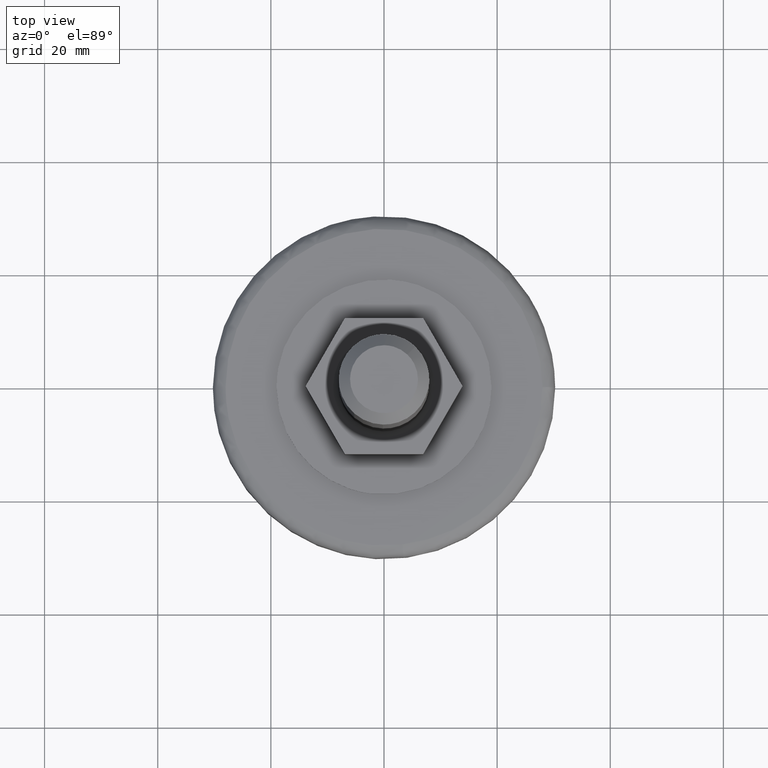
[diagram: clean part render]
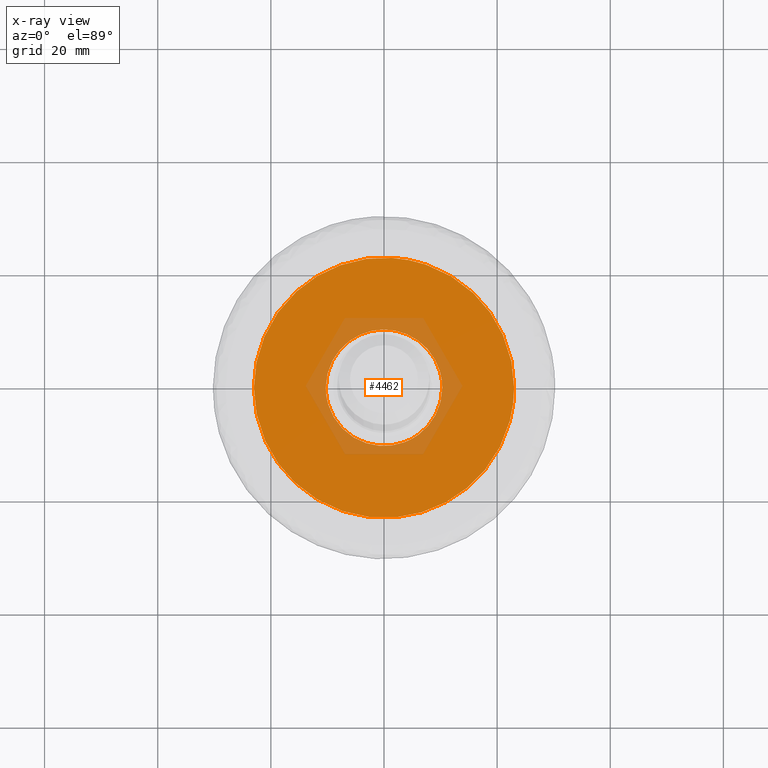
[diagram: x-ray — body ghosted, one internal face saturated and labeled with its STEP entity id]
A machine part, top view, then the same camera in x-ray: the body is ghosted and one INTERNAL B-rep face — a face not visible from any outside direction — is saturated and labeled: STEP entity #4462.
In plain terms, the highlighted face is a freeform B-spline surface patch.
Its self-contained STEP definition (entity closure, byte-faithful):
#3984=CARTESIAN_POINT('',(-2.714775904445386,-22.839220472435318,9.199999999999768));
#3985=VERTEX_POINT('',#3984);
#3986=CARTESIAN_POINT('',(23.0,0.0,9.200000000000101));
#3987=VERTEX_POINT('',#3986);
#3988=CARTESIAN_POINT('',(-2.714775904445386,-22.839220472435322,9.199999999999768));
#3989=CARTESIAN_POINT('',(-1.362148944914869,-22.999999999999996,9.200000000000101));
#3990=CARTESIAN_POINT('',(0.0,-23.0,9.200000000000101));
#3991=CARTESIAN_POINT('',(22.999999999999993,-22.999999999999993,9.200000000000101));
#3992=CARTESIAN_POINT('',(23.0,0.0,9.200000000000101));
#4000=(BOUNDED_CURVE()B_SPLINE_CURVE(2,(#3988,#3989,#3990,#3991,#3992),.UNSPECIFIED.,.F.,.U.)B_SPLINE_CURVE_WITH_KNOTS((3,2,3),(0.229562558557823,0.250000000000000,0.500000000000000),.UNSPECIFIED.)CURVE()GEOMETRIC_REPRESENTATION_ITEM()RATIONAL_B_SPLINE_CURVE((0.956026920874104,0.976056047966757,1.0,0.707106781186548,1.0))REPRESENTATION_ITEM(''));
#4001=EDGE_CURVE('',#3985,#3987,#4000,.T.);
#4042=CARTESIAN_POINT('',(1.404087616905994,22.957102124685051,9.199999999999672));
#4043=VERTEX_POINT('',#4042);
#4049=CARTESIAN_POINT('',(23.0,0.0,9.200000000000101));
#4050=CARTESIAN_POINT('',(23.000000000000004,21.636266725348296,9.200000000000102));
#4051=CARTESIAN_POINT('',(1.404087616905994,22.957102124685054,9.199999999999672));
#4059=(BOUNDED_CURVE()B_SPLINE_CURVE(2,(#4049,#4050,#4051),.UNSPECIFIED.,.F.,.U.)B_SPLINE_CURVE_WITH_KNOTS((3,3),(0.500000000000000,0.739333178647184),.UNSPECIFIED.)CURVE()GEOMETRIC_REPRESENTATION_ITEM()RATIONAL_B_SPLINE_CURVE((1.0,0.719603739748685,0.976072505471212))REPRESENTATION_ITEM(''));
#4060=EDGE_CURVE('',#3987,#4043,#4059,.T.);
#4083=CARTESIAN_POINT('',(-23.0,0.0,9.200000000000101));
#4084=VERTEX_POINT('',#4083);
#4085=CARTESIAN_POINT('',(-23.0,0.0,9.200000000000101));
#4086=CARTESIAN_POINT('',(-22.999999999999996,-20.428024448591888,9.200000000000099));
#4087=CARTESIAN_POINT('',(-2.714775904445386,-22.839220472435322,9.199999999999768));
#4095=(BOUNDED_CURVE()B_SPLINE_CURVE(2,(#4085,#4086,#4087),.UNSPECIFIED.,.F.,.U.)B_SPLINE_CURVE_WITH_KNOTS((3,3),(0.0,0.229562558557823),.UNSPECIFIED.)CURVE()GEOMETRIC_REPRESENTATION_ITEM()RATIONAL_B_SPLINE_CURVE((1.0,0.731050733219790,0.956026920874104))REPRESENTATION_ITEM(''));
#4096=EDGE_CURVE('',#4084,#3985,#4095,.T.);
#4098=CARTESIAN_POINT('',(1.404087616905994,22.957102124685054,9.199999999999672));
#4099=CARTESIAN_POINT('',(0.702699119305535,23.000000000000004,9.200000000000101));
#4100=CARTESIAN_POINT('',(0.0,23.0,9.200000000000101));
#4101=CARTESIAN_POINT('',(-22.999999999999993,22.999999999999993,9.200000000000101));
#4102=CARTESIAN_POINT('',(-23.0,0.0,9.200000000000101));
#4110=(BOUNDED_CURVE()B_SPLINE_CURVE(2,(#4098,#4099,#4100,#4101,#4102),.UNSPECIFIED.,.F.,.U.)B_SPLINE_CURVE_WITH_KNOTS((3,2,3),(0.739333178647184,0.750000000000000,1.0),.UNSPECIFIED.)CURVE()GEOMETRIC_REPRESENTATION_ITEM()RATIONAL_B_SPLINE_CURVE((0.976072505471212,0.987503041437862,1.0,0.707106781186548,1.0))REPRESENTATION_ITEM(''));
#4111=EDGE_CURVE('',#4043,#4084,#4110,.T.);
#4327=CARTESIAN_POINT('',(10.299999998293380,4.437237E-016,9.199999999999999));
#4328=VERTEX_POINT('',#4327);
#4342=CARTESIAN_POINT('',(-10.300000000000001,0.0,9.199999999999999));
#4343=VERTEX_POINT('',#4342);
#4344=CARTESIAN_POINT('',(-10.300000000000001,0.0,9.199999999999999));
#4345=CARTESIAN_POINT('',(-10.300000000000001,10.300000000000001,9.199999999999999));
#4346=CARTESIAN_POINT('',(0.0,10.300000000000001,9.199999999999999));
#4347=CARTESIAN_POINT('',(10.300000000000001,10.300000000000001,9.199999999999999));
#4348=CARTESIAN_POINT('',(10.299999998293380,4.437237E-016,9.199999999999999));
#4356=(BOUNDED_CURVE()B_SPLINE_CURVE(2,(#4344,#4345,#4346,#4347,#4348),.UNSPECIFIED.,.F.,.U.)B_SPLINE_CURVE_WITH_KNOTS((3,2,3),(0.0,0.250000000000000,0.500000000000000),.UNSPECIFIED.)CURVE()GEOMETRIC_REPRESENTATION_ITEM()RATIONAL_B_SPLINE_CURVE((1.0,0.707106781186547,1.0,0.707106781186547,1.0))REPRESENTATION_ITEM(''));
#4357=EDGE_CURVE('',#4343,#4328,#4356,.T.);
#4359=CARTESIAN_POINT('',(3.639010255578132,-9.635746171837553,9.200000000000001));
#4360=VERTEX_POINT('',#4359);
#4361=CARTESIAN_POINT('',(3.639010255578132,-9.635746171837553,9.200000000000001));
#4362=CARTESIAN_POINT('',(1.880130561365738,-10.300000000000001,9.199999999999999));
#4363=CARTESIAN_POINT('',(0.0,-10.300000000000001,9.199999999999999));
#4364=CARTESIAN_POINT('',(-10.300000000000001,-10.300000000000001,9.199999999999999));
#4365=CARTESIAN_POINT('',(-10.300000000000001,0.0,9.199999999999999));
#4373=(BOUNDED_CURVE()B_SPLINE_CURVE(2,(#4361,#4362,#4363,#4364,#4365),.UNSPECIFIED.,.F.,.U.)B_SPLINE_CURVE_WITH_KNOTS((3,2,3),(0.689999999993149,0.750000000000000,1.0),.UNSPECIFIED.)CURVE()GEOMETRIC_REPRESENTATION_ITEM()RATIONAL_B_SPLINE_CURVE((0.893152553768505,0.929705627476745,1.0,0.707106781186547,1.0))REPRESENTATION_ITEM(''));
#4374=EDGE_CURVE('',#4360,#4343,#4373,.T.);
#4411=CARTESIAN_POINT('',(10.299999998293380,4.437237E-016,9.199999999999999));
#4412=CARTESIAN_POINT('',(10.300000000000001,-7.120174515453525,9.199999999999999));
#4413=CARTESIAN_POINT('',(3.639010255578133,-9.635746171837551,9.200000000000001));
#4421=(BOUNDED_CURVE()B_SPLINE_CURVE(2,(#4411,#4412,#4413),.UNSPECIFIED.,.F.,.U.)B_SPLINE_CURVE_WITH_KNOTS((3,3),(0.500000000000000,0.689999999993149),.UNSPECIFIED.)CURVE()GEOMETRIC_REPRESENTATION_ITEM()RATIONAL_B_SPLINE_CURVE((1.0,0.777401153709803,0.893152553768505))REPRESENTATION_ITEM(''));
#4422=EDGE_CURVE('',#4328,#4360,#4421,.T.);
#4446=CARTESIAN_POINT('',(-25.297699910843079,25.297140543101680,9.199999999999999));
#4447=CARTESIAN_POINT('',(25.297701144659221,25.297140543101680,9.199999999999999));
#4448=CARTESIAN_POINT('',(-25.297699910843079,-25.297281609414469,9.199999999999999));
#4449=CARTESIAN_POINT('',(25.297701144659221,-25.297281609414469,9.199999999999999));
#4450=B_SPLINE_SURFACE_WITH_KNOTS('',1,1,((#4446,#4448),(#4447,#4449)),.UNSPECIFIED.,.F.,.F.,.U.,(2,2),(2,2),(0.0,50.595401055502293),(0.0,50.594422152516152),.UNSPECIFIED.);
#4451=ORIENTED_EDGE('',*,*,#4096,.T.);
#4452=ORIENTED_EDGE('',*,*,#4001,.T.);
#4453=ORIENTED_EDGE('',*,*,#4060,.T.);
#4454=ORIENTED_EDGE('',*,*,#4111,.T.);
#4455=EDGE_LOOP('',(#4451,#4452,#4453,#4454));
#4456=FACE_OUTER_BOUND('',#4455,.T.);
#4457=ORIENTED_EDGE('',*,*,#4357,.T.);
#4458=ORIENTED_EDGE('',*,*,#4422,.T.);
#4459=ORIENTED_EDGE('',*,*,#4374,.T.);
#4460=EDGE_LOOP('',(#4457,#4458,#4459));
#4461=FACE_BOUND('',#4460,.T.);
#4462=ADVANCED_FACE('',(#4456,#4461),#4450,.F.);